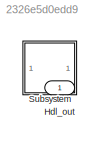
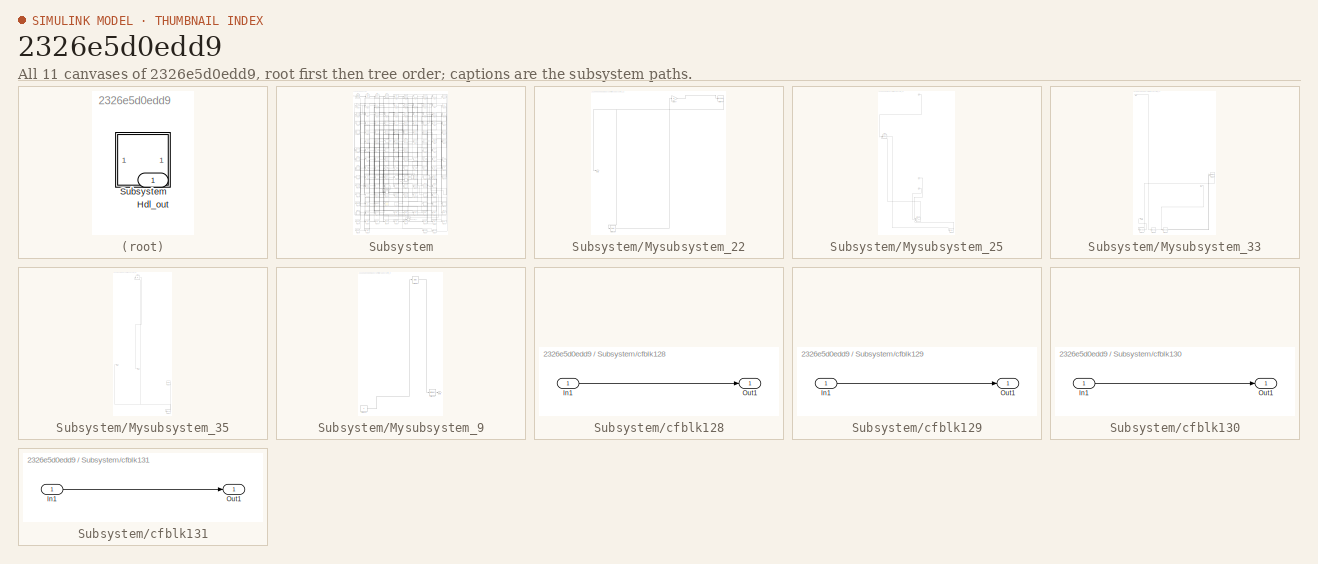
[diagram: thumbnail index - all 11 canvases of the model, root first then tree order]
MODEL slx_2326e5d0edd9
KIND model
CONFIG AbsTol = auto
CONFIG EnableMultiTasking = off
CONFIG FixedStep = auto
CONFIG MaxStep = auto
CONFIG MinStep = auto
CONFIG RelTol = 1e-3
CONFIG SampleTimeConstraint = Unconstrained
CONFIG SolverName = VariableStepAuto
CONFIG StartTime = 0.0
CONFIG StopTime = 10.0
BLOCK [Outport] Hdl_out
  OutDataTypeStr = uint8
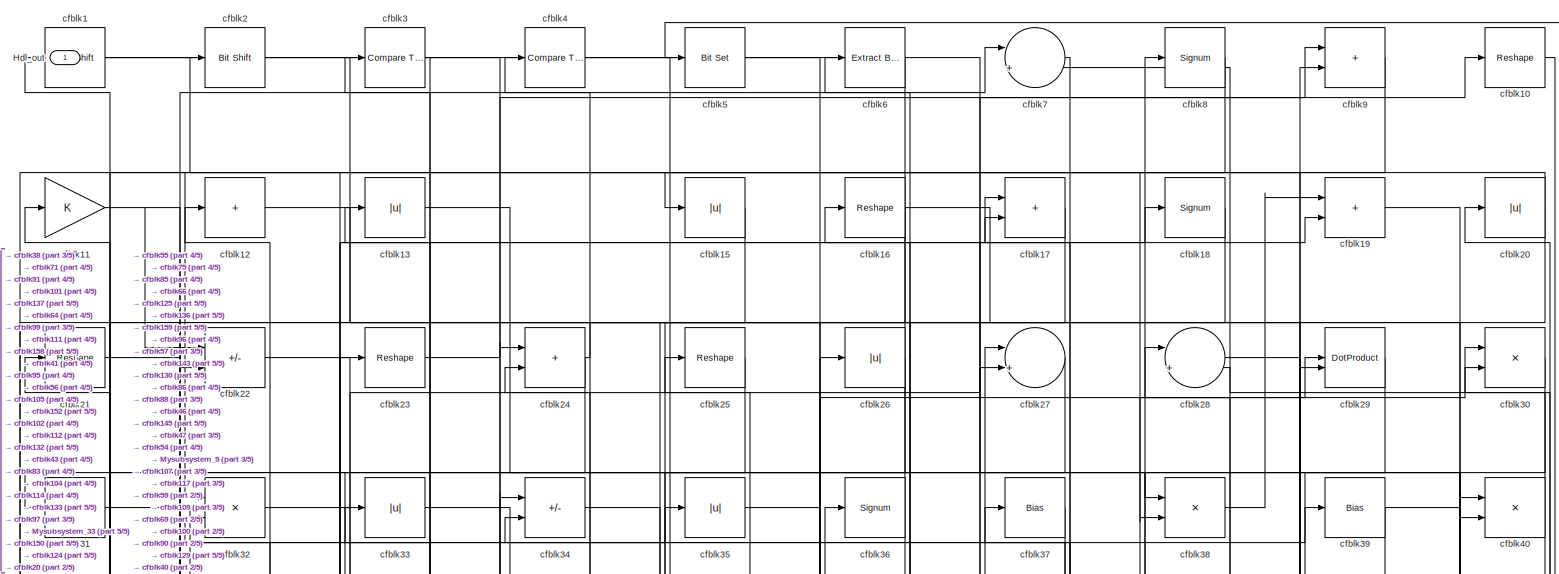
[diagram: Subsystem - part 1/5, full width, top band]
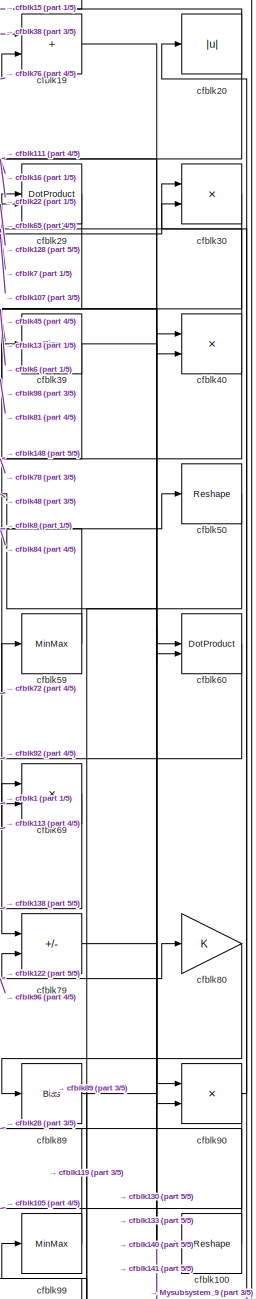
[diagram: Subsystem - part 2/5, middle right region]
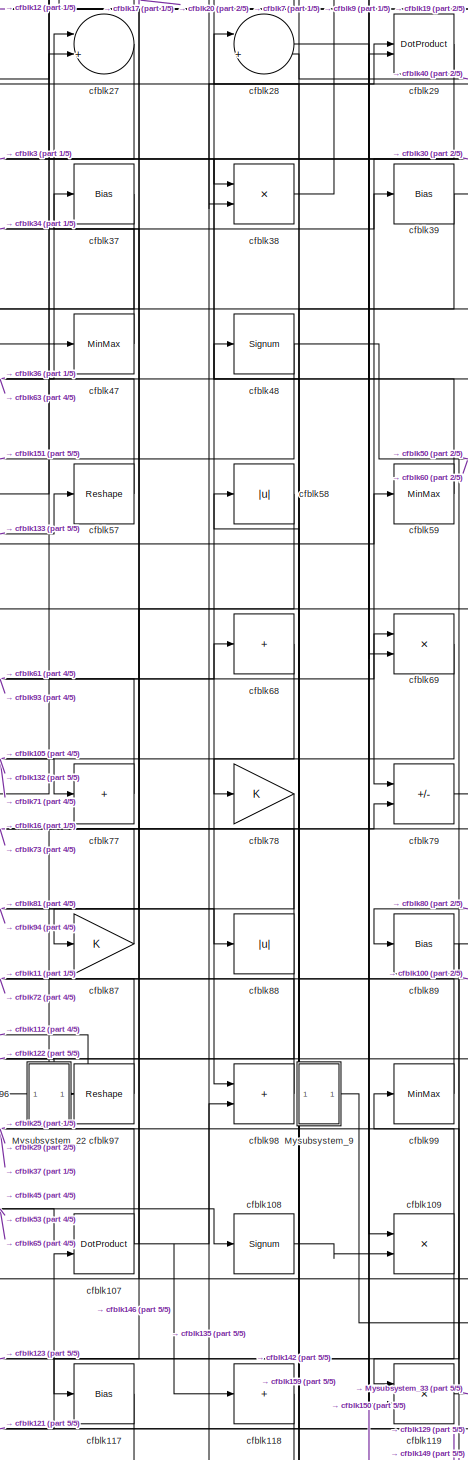
[diagram: Subsystem - part 3/5, middle right region]
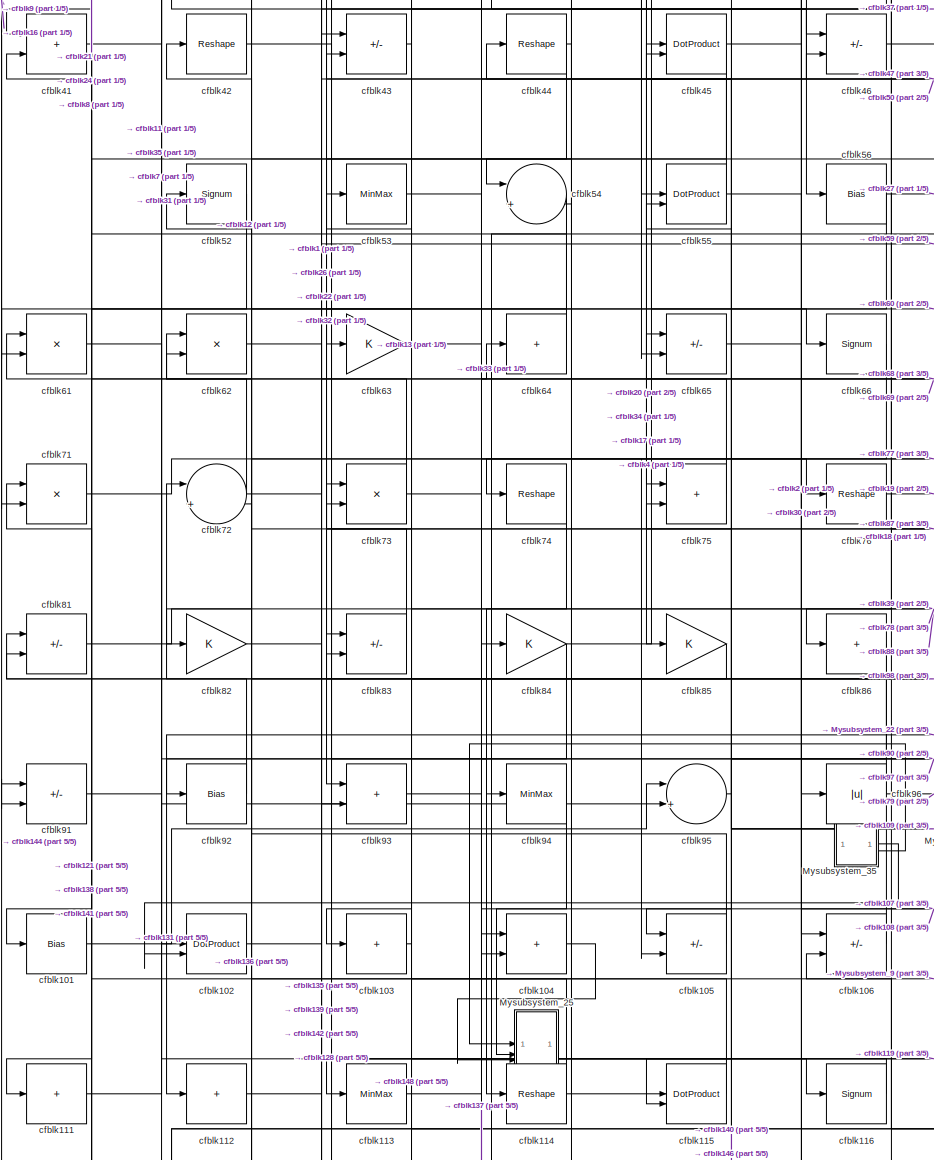
[diagram: Subsystem - part 4/5, middle left region]
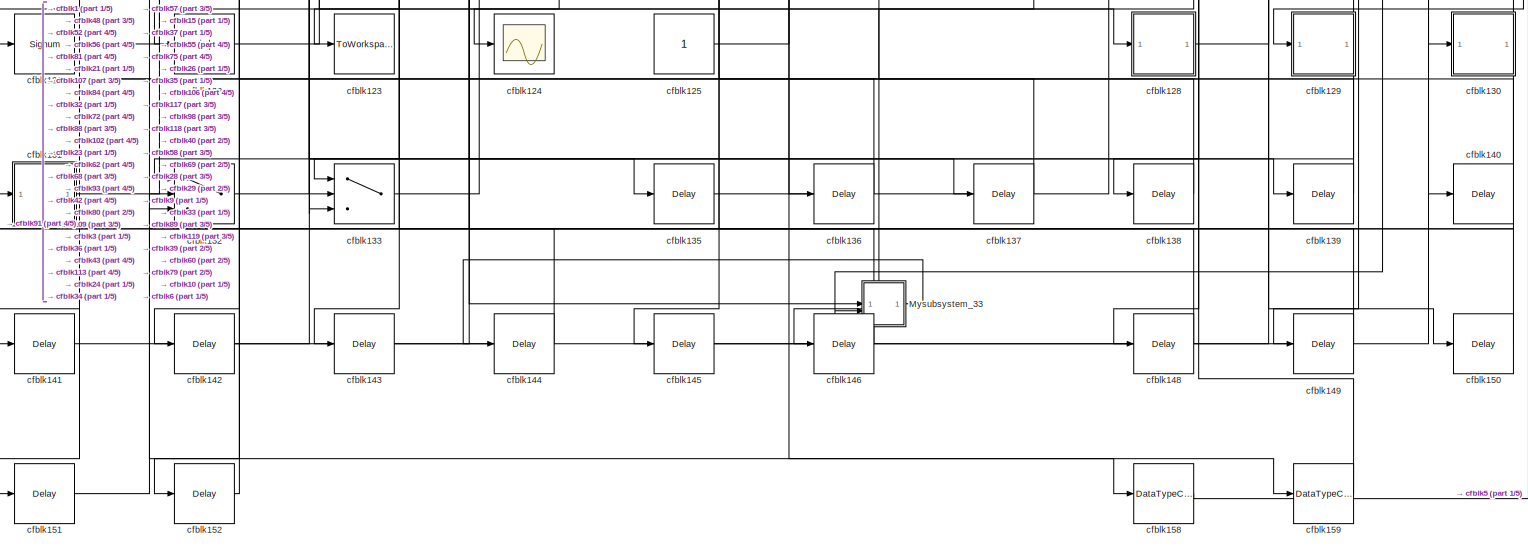
[diagram: Subsystem - part 5/5, full width, bottom band]
BLOCK [SubSystem] Subsystem
BLOCK [Outport] Subsystem/Hdl_out
  OutDataTypeStr = uint8
BLOCK [SubSystem] Subsystem/Mysubsystem_22
  RTWFcnName = Mysubsystem_22
  RTWFcnNameOpts = User specified
  RTWFileNameOpts = Use function name
  RTWSystemCode = Reusable function
  TreatAsAtomicUnit = on
BLOCK [Outport] Subsystem/Mysubsystem_22/Out1
BLOCK [Delay] Subsystem/Mysubsystem_22/cfblk153
  InputPortMap = u0
  SampleTime = 1
BLOCK [Gain] Subsystem/Mysubsystem_22/cfblk67
BLOCK [Reshape] Subsystem/Mysubsystem_22/cfblk70
BLOCK [SubSystem] Subsystem/Mysubsystem_25
  RTWFcnName = Mysubsystem_25
  RTWFcnNameOpts = User specified
  RTWFileNameOpts = Use function name
  RTWSystemCode = Reusable function
  TreatAsAtomicUnit = on
BLOCK [Inport] Subsystem/Mysubsystem_25/In1
BLOCK [Inport] Subsystem/Mysubsystem_25/In2
  Port = 2
BLOCK [Inport] Subsystem/Mysubsystem_25/In3
  Port = 3
BLOCK [Switch] Subsystem/Mysubsystem_25/cfblk134
  InputSameDT = off
  SaturateOnIntegerOverflow = off
BLOCK [Delay] Subsystem/Mysubsystem_25/cfblk147
  InputPortMap = u0
  SampleTime = 1
BLOCK [DotProduct] Subsystem/Mysubsystem_25/cfblk51
  OutDataTypeStr = Inherit: Inherit via internal rule
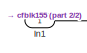
[diagram: Subsystem/Mysubsystem_33 - part 1/2, top left region]
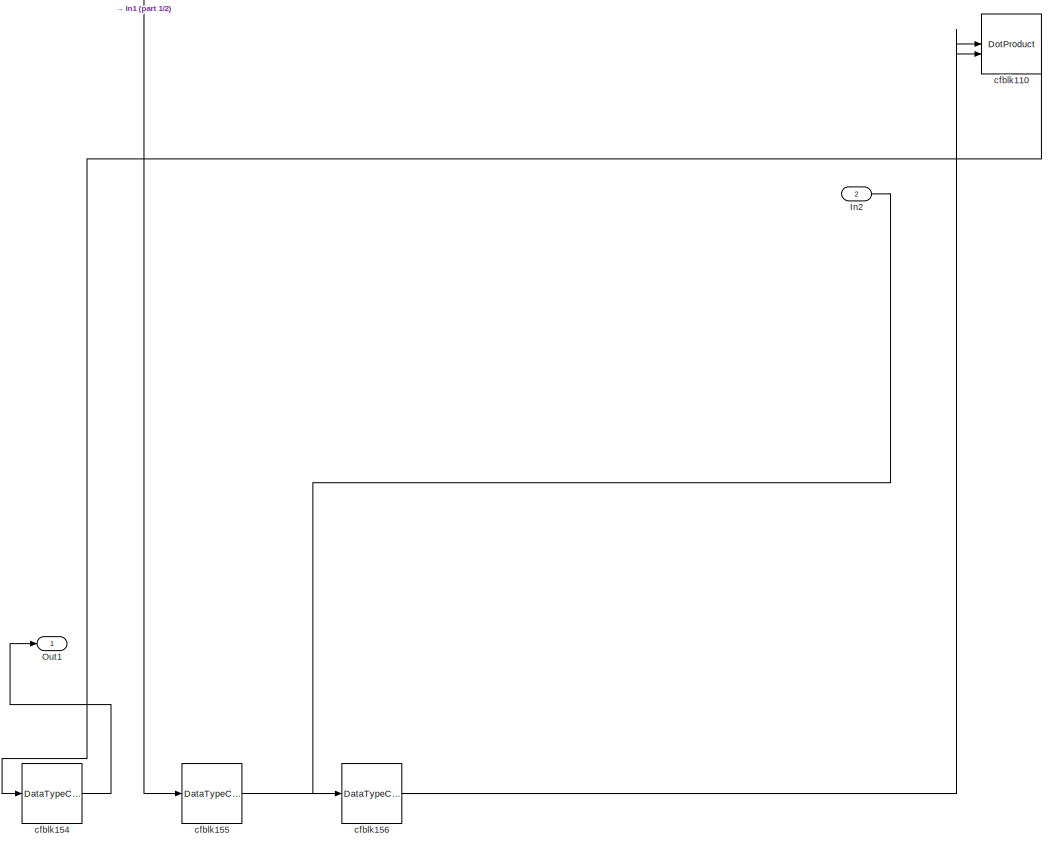
[diagram: Subsystem/Mysubsystem_33 - part 2/2, full width, bottom band]
BLOCK [SubSystem] Subsystem/Mysubsystem_33
  RTWFcnName = Mysubsystem_33
  RTWFcnNameOpts = User specified
  RTWFileNameOpts = Use function name
  RTWSystemCode = Reusable function
  TreatAsAtomicUnit = on
BLOCK [Inport] Subsystem/Mysubsystem_33/In1
BLOCK [Inport] Subsystem/Mysubsystem_33/In2
  Port = 2
BLOCK [Outport] Subsystem/Mysubsystem_33/Out1
BLOCK [DotProduct] Subsystem/Mysubsystem_33/cfblk110
  OutDataTypeStr = Inherit: Inherit via internal rule
BLOCK [DataTypeConversion] Subsystem/Mysubsystem_33/cfblk154
  OutDataTypeStr = uint8
  RndMeth = Floor
  SaturateOnIntegerOverflow = off
BLOCK [DataTypeConversion] Subsystem/Mysubsystem_33/cfblk155
  OutDataTypeStr = uint8
  RndMeth = Floor
  SaturateOnIntegerOverflow = off
BLOCK [DataTypeConversion] Subsystem/Mysubsystem_33/cfblk156
  OutDataTypeStr = uint8
  RndMeth = Floor
  SaturateOnIntegerOverflow = off
BLOCK [SubSystem] Subsystem/Mysubsystem_35
  RTWFcnName = Mysubsystem_35
  RTWFcnNameOpts = User specified
  RTWFileNameOpts = Use function name
  RTWSystemCode = Reusable function
  TreatAsAtomicUnit = on
BLOCK [Outport] Subsystem/Mysubsystem_35/Out1
BLOCK [Outport] Subsystem/Mysubsystem_35/Out2
  Port = 2
BLOCK [Reference] Subsystem/Mysubsystem_35/cfblk127  REF=hdlsllib/Sources/Counter
Limited
  SourceBlock = hdlsllib/Sources/Counter\nLimited
  SourceType = Counter Limited
BLOCK [Abs] Subsystem/Mysubsystem_35/cfblk14
  SaturateOnIntegerOverflow = off
BLOCK [DataTypeConversion] Subsystem/Mysubsystem_35/cfblk157
  RndMeth = Floor
  SaturateOnIntegerOverflow = off
BLOCK [SubSystem] Subsystem/Mysubsystem_9
  RTWFcnName = Mysubsystem_9
  RTWFcnNameOpts = User specified
  RTWFileNameOpts = Use function name
  RTWSystemCode = Reusable function
  TreatAsAtomicUnit = on
BLOCK [Outport] Subsystem/Mysubsystem_9/Out1
BLOCK [MinMax] Subsystem/Mysubsystem_9/cfblk120
BLOCK [Constant] Subsystem/Mysubsystem_9/cfblk126
  SampleTime = -1
BLOCK [Bias] Subsystem/Mysubsystem_9/cfblk49
  Bias = 0.0
  SaturateOnIntegerOverflow = off
BLOCK [ArithShift] Subsystem/cfblk1
  BitShiftNumber = 8
  InputPortMap = u0
BLOCK [Reshape] Subsystem/cfblk10
BLOCK [Reshape] Subsystem/cfblk100
BLOCK [Bias] Subsystem/cfblk101
  Bias = 0.0
  SaturateOnIntegerOverflow = off
BLOCK [DotProduct] Subsystem/cfblk102
  OutDataTypeStr = uint8
BLOCK [Sum] Subsystem/cfblk103
  IconShape = rectangular
  Inputs = +
  OutDataTypeStr = uint8
BLOCK [Sum] Subsystem/cfblk104
  IconShape = rectangular
  OutDataTypeStr = uint8
BLOCK [Sum] Subsystem/cfblk105
  IconShape = rectangular
  Inputs = +-
  OutDataTypeStr = uint8
BLOCK [Sum] Subsystem/cfblk106
  IconShape = rectangular
  Inputs = +-
  OutDataTypeStr = uint8
BLOCK [DotProduct] Subsystem/cfblk107
  OutDataTypeStr = uint8
BLOCK [Signum] Subsystem/cfblk108
BLOCK [Product] Subsystem/cfblk109
  Inputs = */
  OutDataTypeStr = uint8
  RndMeth = Zero
  SaturateOnIntegerOverflow = on
BLOCK [Gain] Subsystem/cfblk11
  OutDataTypeStr = uint8
BLOCK [Sum] Subsystem/cfblk111
  IconShape = rectangular
  Inputs = +
  OutDataTypeStr = uint8
BLOCK [Sum] Subsystem/cfblk112
  IconShape = rectangular
  Inputs = +
  OutDataTypeStr = uint8
BLOCK [MinMax] Subsystem/cfblk113
  OutDataTypeStr = uint8
BLOCK [Reshape] Subsystem/cfblk114
BLOCK [DotProduct] Subsystem/cfblk115
  OutDataTypeStr = uint8
BLOCK [Signum] Subsystem/cfblk116
BLOCK [Bias] Subsystem/cfblk117
  Bias = 0.0
  SaturateOnIntegerOverflow = off
BLOCK [Sum] Subsystem/cfblk118
  IconShape = rectangular
  Inputs = +
  OutDataTypeStr = uint8
BLOCK [Product] Subsystem/cfblk119
  Inputs = */
  OutDataTypeStr = uint8
  RndMeth = Zero
  SaturateOnIntegerOverflow = on
BLOCK [Sum] Subsystem/cfblk12
  IconShape = rectangular
  Inputs = +
  OutDataTypeStr = uint8
BLOCK [Signum] Subsystem/cfblk121
BLOCK [Abs] Subsystem/cfblk122
  OutDataTypeStr = uint8
  SaturateOnIntegerOverflow = off
BLOCK [ToWorkspace] Subsystem/cfblk123
  MaxDataPoints = inf
  SampleTime = -1
  SaveFormat = Timeseries
  VariableName = simout
BLOCK [Scope] Subsystem/cfblk124
  Floating = off
  NumInputPorts = 1
  ScopeSpecificationString = Simulink.scopes.TimeScopeBlockCfg('CurrentConfiguration', extmgr.ConfigurationSet(extmgr.Configuration('Core','General UI',true),extmgr.Configuration('Core','Source UI',true),extmgr.Configuration('Sources','WiredSimulink',true,'DataLoggingSaveFormat','Array','DataLoggingLimitDataPoints',true,'DataLoggingDecimation','1'),extmgr.Configuration('Visuals','Time Domain',true,'DisplayPropertyDefaults',st...<+829ch>
BLOCK [Constant] Subsystem/cfblk125
  OutDataTypeStr = uint8
  SampleTime = -1
BLOCK [SubSystem] Subsystem/cfblk128
  LibrarySourceBlock = hdlsllib/Ports &\nSubsystems/Subsystem
BLOCK [Inport] Subsystem/cfblk128/In1
BLOCK [Outport] Subsystem/cfblk128/Out1
BLOCK [SubSystem] Subsystem/cfblk129
  LibrarySourceBlock = hdlsllib/Ports &\nSubsystems/Subsystem
BLOCK [Inport] Subsystem/cfblk129/In1
BLOCK [Outport] Subsystem/cfblk129/Out1
BLOCK [Abs] Subsystem/cfblk13
  OutDataTypeStr = uint8
  SaturateOnIntegerOverflow = off
BLOCK [SubSystem] Subsystem/cfblk130
  LibrarySourceBlock = hdlsllib/Ports &\nSubsystems/Subsystem
BLOCK [Inport] Subsystem/cfblk130/In1
BLOCK [Outport] Subsystem/cfblk130/Out1
BLOCK [SubSystem] Subsystem/cfblk131
  LibrarySourceBlock = hdlsllib/Ports &\nSubsystems/Subsystem
BLOCK [Inport] Subsystem/cfblk131/In1
BLOCK [Outport] Subsystem/cfblk131/Out1
BLOCK [Switch] Subsystem/cfblk132
  InputSameDT = off
  OutDataTypeStr = uint8
  SaturateOnIntegerOverflow = off
BLOCK [Switch] Subsystem/cfblk133
  InputSameDT = off
  OutDataTypeStr = uint8
  SaturateOnIntegerOverflow = off
BLOCK [Delay] Subsystem/cfblk135
  InputPortMap = u0
  SampleTime = 1
BLOCK [Delay] Subsystem/cfblk136
  InputPortMap = u0
  SampleTime = 1
BLOCK [Delay] Subsystem/cfblk137
  InputPortMap = u0
  SampleTime = 1
BLOCK [Delay] Subsystem/cfblk138
  InputPortMap = u0
  SampleTime = 1
BLOCK [Delay] Subsystem/cfblk139
  InputPortMap = u0
  SampleTime = 1
BLOCK [Delay] Subsystem/cfblk140
  InputPortMap = u0
  SampleTime = 1
BLOCK [Delay] Subsystem/cfblk141
  InputPortMap = u0
  SampleTime = 1
BLOCK [Delay] Subsystem/cfblk142
  InputPortMap = u0
  SampleTime = 1
BLOCK [Delay] Subsystem/cfblk143
  InputPortMap = u0
  SampleTime = 1
BLOCK [Delay] Subsystem/cfblk144
  InputPortMap = u0
  SampleTime = 1
BLOCK [Delay] Subsystem/cfblk145
  InputPortMap = u0
  SampleTime = 1
BLOCK [Delay] Subsystem/cfblk146
  InputPortMap = u0
  SampleTime = 1
BLOCK [Delay] Subsystem/cfblk148
  InputPortMap = u0
  SampleTime = 1
BLOCK [Delay] Subsystem/cfblk149
  InputPortMap = u0
  SampleTime = 1
BLOCK [Abs] Subsystem/cfblk15
  OutDataTypeStr = uint8
  SaturateOnIntegerOverflow = off
BLOCK [Delay] Subsystem/cfblk150
  InputPortMap = u0
  SampleTime = 1
BLOCK [Delay] Subsystem/cfblk151
  InputPortMap = u0
  SampleTime = 1
BLOCK [Delay] Subsystem/cfblk152
  InputPortMap = u0
  SampleTime = 1
BLOCK [DataTypeConversion] Subsystem/cfblk158
  OutDataTypeStr = uint8
  RndMeth = Floor
  SaturateOnIntegerOverflow = off
BLOCK [DataTypeConversion] Subsystem/cfblk159
  OutDataTypeStr = uint8
  RndMeth = Floor
  SaturateOnIntegerOverflow = off
BLOCK [Reshape] Subsystem/cfblk16
BLOCK [Sum] Subsystem/cfblk17
  IconShape = rectangular
  OutDataTypeStr = uint8
BLOCK [Signum] Subsystem/cfblk18
BLOCK [Sum] Subsystem/cfblk19
  IconShape = rectangular
  OutDataTypeStr = uint8
BLOCK [Reference] Subsystem/cfblk2  REF=hdlsllib/Logic and Bit
Operations/Bit Shift
  SourceBlock = hdlsllib/Logic and Bit\nOperations/Bit Shift
  SourceType = Bit Shift
BLOCK [Abs] Subsystem/cfblk20
  OutDataTypeStr = uint8
  SaturateOnIntegerOverflow = off
BLOCK [Reshape] Subsystem/cfblk21
BLOCK [Sum] Subsystem/cfblk22
  IconShape = rectangular
  Inputs = +-
  OutDataTypeStr = uint8
BLOCK [Reshape] Subsystem/cfblk23
BLOCK [Sum] Subsystem/cfblk24
  IconShape = rectangular
  OutDataTypeStr = uint8
BLOCK [Reshape] Subsystem/cfblk25
BLOCK [Abs] Subsystem/cfblk26
  OutDataTypeStr = uint8
  SaturateOnIntegerOverflow = off
BLOCK [Sum] Subsystem/cfblk27
  Inputs = |++
  OutDataTypeStr = uint8
BLOCK [Sum] Subsystem/cfblk28
  Inputs = |++
  OutDataTypeStr = uint8
BLOCK [DotProduct] Subsystem/cfblk29
  OutDataTypeStr = uint8
BLOCK [Reference] Subsystem/cfblk3  REF=hdlsllib/Logic and Bit
Operations/Compare
To Constant
  SourceBlock = hdlsllib/Logic and Bit\nOperations/Compare\nTo Constant
  SourceType = Compare To Constant
BLOCK [Product] Subsystem/cfblk30
  Inputs = */
  OutDataTypeStr = uint8
  RndMeth = Zero
  SaturateOnIntegerOverflow = on
BLOCK [Sum] Subsystem/cfblk31
  IconShape = rectangular
  Inputs = +
  OutDataTypeStr = uint8
BLOCK [Product] Subsystem/cfblk32
  Inputs = */
  OutDataTypeStr = uint8
  RndMeth = Zero
  SaturateOnIntegerOverflow = on
BLOCK [Abs] Subsystem/cfblk33
  OutDataTypeStr = uint8
  SaturateOnIntegerOverflow = off
BLOCK [Sum] Subsystem/cfblk34
  IconShape = rectangular
  Inputs = +-
  OutDataTypeStr = uint8
BLOCK [Abs] Subsystem/cfblk35
  OutDataTypeStr = uint8
  SaturateOnIntegerOverflow = off
BLOCK [Signum] Subsystem/cfblk36
BLOCK [Bias] Subsystem/cfblk37
  Bias = 0.0
  SaturateOnIntegerOverflow = off
BLOCK [Product] Subsystem/cfblk38
  Inputs = */
  OutDataTypeStr = uint8
  RndMeth = Zero
  SaturateOnIntegerOverflow = on
BLOCK [Bias] Subsystem/cfblk39
  Bias = 0.0
  SaturateOnIntegerOverflow = off
BLOCK [Reference] Subsystem/cfblk4  REF=hdlsllib/Logic and Bit
Operations/Compare
To Constant
  SourceBlock = hdlsllib/Logic and Bit\nOperations/Compare\nTo Constant
  SourceType = Compare To Constant
BLOCK [Product] Subsystem/cfblk40
  Inputs = */
  OutDataTypeStr = uint8
  RndMeth = Zero
  SaturateOnIntegerOverflow = on
BLOCK [Sum] Subsystem/cfblk41
  IconShape = rectangular
  OutDataTypeStr = uint8
BLOCK [Reshape] Subsystem/cfblk42
BLOCK [Sum] Subsystem/cfblk43
  IconShape = rectangular
  Inputs = +-
  OutDataTypeStr = uint8
BLOCK [Reshape] Subsystem/cfblk44
BLOCK [DotProduct] Subsystem/cfblk45
  OutDataTypeStr = uint8
BLOCK [Sum] Subsystem/cfblk46
  IconShape = rectangular
  Inputs = +-
  OutDataTypeStr = uint8
BLOCK [MinMax] Subsystem/cfblk47
  OutDataTypeStr = uint8
BLOCK [Signum] Subsystem/cfblk48
BLOCK [Reference] Subsystem/cfblk5  REF=simulink/Logic and Bit
Operations/Bit Set
  LibrarySourceBlock = hdlsllib/Logic and Bit\nOperations/Bit Set
  SourceBlock = simulink/Logic and Bit\nOperations/Bit Set
  SourceType = Bit Set
BLOCK [Reshape] Subsystem/cfblk50
BLOCK [Signum] Subsystem/cfblk52
BLOCK [MinMax] Subsystem/cfblk53
  OutDataTypeStr = uint8
BLOCK [Sum] Subsystem/cfblk54
  Inputs = |++
  OutDataTypeStr = uint8
BLOCK [DotProduct] Subsystem/cfblk55
  OutDataTypeStr = uint8
BLOCK [Bias] Subsystem/cfblk56
  Bias = 0.0
  SaturateOnIntegerOverflow = off
BLOCK [Reshape] Subsystem/cfblk57
BLOCK [Abs] Subsystem/cfblk58
  OutDataTypeStr = uint8
  SaturateOnIntegerOverflow = off
BLOCK [MinMax] Subsystem/cfblk59
  OutDataTypeStr = uint8
BLOCK [Reference] Subsystem/cfblk6  REF=simulink/Logic and Bit
Operations/Extract Bits
  LibrarySourceBlock = hdlsllib/Logic and Bit\nOperations/Extract Bits
  SourceBlock = simulink/Logic and Bit\nOperations/Extract Bits
  SourceType = Extract Bits
BLOCK [DotProduct] Subsystem/cfblk60
  OutDataTypeStr = uint8
BLOCK [Product] Subsystem/cfblk61
  Inputs = */
  OutDataTypeStr = uint8
  RndMeth = Zero
  SaturateOnIntegerOverflow = on
BLOCK [Product] Subsystem/cfblk62
  Inputs = */
  OutDataTypeStr = uint8
  RndMeth = Zero
  SaturateOnIntegerOverflow = on
BLOCK [Gain] Subsystem/cfblk63
  OutDataTypeStr = uint8
BLOCK [Sum] Subsystem/cfblk64
  IconShape = rectangular
  Inputs = +
  OutDataTypeStr = uint8
BLOCK [Sum] Subsystem/cfblk65
  IconShape = rectangular
  Inputs = +-
  OutDataTypeStr = uint8
BLOCK [Signum] Subsystem/cfblk66
BLOCK [Sum] Subsystem/cfblk68
  IconShape = rectangular
  Inputs = +
  OutDataTypeStr = uint8
BLOCK [Product] Subsystem/cfblk69
  Inputs = */
  OutDataTypeStr = uint8
  RndMeth = Zero
  SaturateOnIntegerOverflow = on
BLOCK [Sum] Subsystem/cfblk7
  Inputs = |++
  OutDataTypeStr = uint8
BLOCK [Product] Subsystem/cfblk71
  Inputs = */
  OutDataTypeStr = uint8
  RndMeth = Zero
  SaturateOnIntegerOverflow = on
BLOCK [Sum] Subsystem/cfblk72
  Inputs = |++
  OutDataTypeStr = uint8
BLOCK [Product] Subsystem/cfblk73
  Inputs = */
  OutDataTypeStr = uint8
  RndMeth = Zero
  SaturateOnIntegerOverflow = on
BLOCK [Reshape] Subsystem/cfblk74
BLOCK [Sum] Subsystem/cfblk75
  IconShape = rectangular
  OutDataTypeStr = uint8
BLOCK [Reshape] Subsystem/cfblk76
BLOCK [Sum] Subsystem/cfblk77
  IconShape = rectangular
  Inputs = +
  OutDataTypeStr = uint8
BLOCK [Gain] Subsystem/cfblk78
  OutDataTypeStr = uint8
BLOCK [Sum] Subsystem/cfblk79
  IconShape = rectangular
  Inputs = +-
  OutDataTypeStr = uint8
BLOCK [Signum] Subsystem/cfblk8
BLOCK [Gain] Subsystem/cfblk80
  OutDataTypeStr = uint8
BLOCK [Sum] Subsystem/cfblk81
  IconShape = rectangular
  Inputs = +-
  OutDataTypeStr = uint8
BLOCK [Gain] Subsystem/cfblk82
  OutDataTypeStr = uint8
BLOCK [Sum] Subsystem/cfblk83
  IconShape = rectangular
  Inputs = +-
  OutDataTypeStr = uint8
BLOCK [Gain] Subsystem/cfblk84
  OutDataTypeStr = uint8
BLOCK [Gain] Subsystem/cfblk85
  OutDataTypeStr = uint8
BLOCK [Sum] Subsystem/cfblk86
  IconShape = rectangular
  Inputs = +
  OutDataTypeStr = uint8
BLOCK [Gain] Subsystem/cfblk87
  OutDataTypeStr = uint8
BLOCK [Abs] Subsystem/cfblk88
  OutDataTypeStr = uint8
  SaturateOnIntegerOverflow = off
BLOCK [Bias] Subsystem/cfblk89
  Bias = 0.0
  SaturateOnIntegerOverflow = off
BLOCK [Sum] Subsystem/cfblk9
  IconShape = rectangular
  OutDataTypeStr = uint8
BLOCK [Product] Subsystem/cfblk90
  Inputs = */
  OutDataTypeStr = uint8
  RndMeth = Zero
  SaturateOnIntegerOverflow = on
BLOCK [Sum] Subsystem/cfblk91
  IconShape = rectangular
  Inputs = +-
  OutDataTypeStr = uint8
BLOCK [Bias] Subsystem/cfblk92
  Bias = 0.0
  SaturateOnIntegerOverflow = off
BLOCK [Sum] Subsystem/cfblk93
  IconShape = rectangular
  OutDataTypeStr = uint8
BLOCK [MinMax] Subsystem/cfblk94
  OutDataTypeStr = uint8
BLOCK [Sum] Subsystem/cfblk95
  Inputs = |++
  OutDataTypeStr = uint8
BLOCK [Abs] Subsystem/cfblk96
  OutDataTypeStr = uint8
  SaturateOnIntegerOverflow = off
BLOCK [Reshape] Subsystem/cfblk97
BLOCK [Sum] Subsystem/cfblk98
  IconShape = rectangular
  OutDataTypeStr = uint8
BLOCK [MinMax] Subsystem/cfblk99
  OutDataTypeStr = uint8
LINE Subsystem/Mysubsystem_22/cfblk153:1 -> Subsystem/Mysubsystem_22/cfblk67:1
LINE Subsystem/Mysubsystem_22/cfblk67:1 -> Subsystem/Mysubsystem_22/cfblk70:1
NET Subsystem/Mysubsystem_22/cfblk70:1 -> Subsystem/Mysubsystem_22/Out1:1, Subsystem/Mysubsystem_22/cfblk153:1
LINE Subsystem/Mysubsystem_22:1 -> Subsystem/cfblk112:1
LINE Subsystem/Mysubsystem_25/In1:1 -> Subsystem/Mysubsystem_25/cfblk51:2
LINE Subsystem/Mysubsystem_25/In2:1 -> Subsystem/Mysubsystem_25/cfblk134:1
LINE Subsystem/Mysubsystem_25/In3:1 -> Subsystem/Mysubsystem_25/cfblk134:2
LINE Subsystem/Mysubsystem_25/cfblk134:1 -> Subsystem/Mysubsystem_25/cfblk51:1
LINE Subsystem/Mysubsystem_25/cfblk147:1 -> Subsystem/Mysubsystem_25/cfblk134:3
LINE Subsystem/Mysubsystem_25/cfblk51:1 -> Subsystem/Mysubsystem_25/cfblk147:1
LINE Subsystem/Mysubsystem_33/In1:1 -> Subsystem/Mysubsystem_33/cfblk155:1
LINE Subsystem/Mysubsystem_33/In2:1 -> Subsystem/Mysubsystem_33/cfblk156:1
LINE Subsystem/Mysubsystem_33/cfblk110:1 -> Subsystem/Mysubsystem_33/cfblk154:1
LINE Subsystem/Mysubsystem_33/cfblk154:1 -> Subsystem/Mysubsystem_33/Out1:1
LINE Subsystem/Mysubsystem_33/cfblk155:1 -> Subsystem/Mysubsystem_33/cfblk110:1
LINE Subsystem/Mysubsystem_33/cfblk156:1 -> Subsystem/Mysubsystem_33/cfblk110:2
LINE Subsystem/Mysubsystem_33:1 -> Subsystem/cfblk144:1
LINE Subsystem/Mysubsystem_35/cfblk127:1 -> Subsystem/Mysubsystem_35/cfblk157:1
LINE Subsystem/Mysubsystem_35/cfblk14:1 -> Subsystem/Mysubsystem_35/Out2:1
NET Subsystem/Mysubsystem_35/cfblk157:1 -> Subsystem/Mysubsystem_35/Out1:1, Subsystem/Mysubsystem_35/cfblk14:1
LINE Subsystem/Mysubsystem_35:1 -> Subsystem/cfblk102:2
LINE Subsystem/Mysubsystem_35:2 -> Subsystem/Mysubsystem_25:1
LINE Subsystem/Mysubsystem_9/cfblk120:1 -> Subsystem/Mysubsystem_9/Out1:1
LINE Subsystem/Mysubsystem_9/cfblk126:1 -> Subsystem/Mysubsystem_9/cfblk49:1
LINE Subsystem/Mysubsystem_9/cfblk49:1 -> Subsystem/Mysubsystem_9/cfblk120:1
NET Subsystem/Mysubsystem_9:1 -> Subsystem/cfblk17:1, Subsystem/cfblk20:1, Subsystem/cfblk71:1
LINE Subsystem/cfblk100:1 -> Subsystem/cfblk28:1
LINE Subsystem/cfblk101:1 -> Subsystem/cfblk95:1
NET Subsystem/cfblk102:1 -> Subsystem/cfblk139:1, Subsystem/cfblk17:2, Subsystem/cfblk64:1
LINE Subsystem/cfblk103:1 -> Subsystem/cfblk53:1
LINE Subsystem/cfblk104:1 -> Subsystem/Mysubsystem_25:3
LINE Subsystem/cfblk105:1 -> Subsystem/cfblk12:1
LINE Subsystem/cfblk106:1 -> Subsystem/cfblk44:1
NET Subsystem/cfblk107:1 -> Subsystem/cfblk118:1, Subsystem/cfblk25:1, Subsystem/cfblk29:1, Subsystem/cfblk37:1
NET Subsystem/cfblk108:1 -> Subsystem/cfblk109:2, Subsystem/cfblk28:2
NET Subsystem/cfblk109:1 -> Subsystem/cfblk123:1, Subsystem/cfblk45:2
LINE Subsystem/cfblk10:1 -> Subsystem/cfblk129:1
LINE Subsystem/cfblk111:1 -> Subsystem/cfblk7:1
NET Subsystem/cfblk112:1 -> Subsystem/cfblk18:1, Subsystem/cfblk46:2
NET Subsystem/cfblk113:1 -> Subsystem/cfblk137:1, Subsystem/cfblk69:1
NET Subsystem/cfblk114:1 -> Subsystem/cfblk115:2, Subsystem/cfblk24:2, Subsystem/cfblk52:1
LINE Subsystem/cfblk115:1 -> Subsystem/cfblk73:1
LINE Subsystem/cfblk116:1 -> Subsystem/cfblk113:1
LINE Subsystem/cfblk117:1 -> Subsystem/cfblk146:1
LINE Subsystem/cfblk118:1 -> Subsystem/cfblk142:1
NET Subsystem/cfblk119:1 -> Subsystem/Mysubsystem_33:2, Subsystem/cfblk99:1
NET Subsystem/cfblk11:1 -> Subsystem/cfblk22:1, Subsystem/cfblk95:2
LINE Subsystem/cfblk121:1 -> Subsystem/cfblk107:2
LINE Subsystem/cfblk122:1 -> Subsystem/cfblk80:1
LINE Subsystem/cfblk125:1 -> Subsystem/cfblk26:1
LINE Subsystem/cfblk128/In1:1 -> Subsystem/cfblk128/Out1:1
LINE Subsystem/cfblk128:1 -> Subsystem/cfblk29:2
LINE Subsystem/cfblk129/In1:1 -> Subsystem/cfblk129/Out1:1
NET Subsystem/cfblk129:1 -> Subsystem/cfblk152:1, Subsystem/cfblk33:1, Subsystem/cfblk48:1
LINE Subsystem/cfblk12:1 -> Subsystem/cfblk109:1
LINE Subsystem/cfblk130/In1:1 -> Subsystem/cfblk130/Out1:1
NET Subsystem/cfblk130:1 -> Subsystem/cfblk131:1, Subsystem/cfblk6:1
LINE Subsystem/cfblk131/In1:1 -> Subsystem/cfblk131/Out1:1
LINE Subsystem/cfblk131:1 -> Subsystem/cfblk84:1
LINE Subsystem/cfblk132:1 -> Subsystem/cfblk23:1
LINE Subsystem/cfblk133:1 -> Subsystem/cfblk57:1
LINE Subsystem/cfblk135:1 -> Subsystem/cfblk98:2
LINE Subsystem/cfblk136:1 -> Subsystem/cfblk72:2
LINE Subsystem/cfblk137:1 -> Subsystem/cfblk1:1
LINE Subsystem/cfblk138:1 -> Subsystem/cfblk81:2
LINE Subsystem/cfblk139:1 -> Subsystem/cfblk106:2
LINE Subsystem/cfblk13:1 -> Subsystem/cfblk100:1
LINE Subsystem/cfblk140:1 -> Subsystem/cfblk75:2
LINE Subsystem/cfblk141:1 -> Subsystem/cfblk60:1
LINE Subsystem/cfblk142:1 -> Subsystem/cfblk93:2
LINE Subsystem/cfblk143:1 -> Subsystem/cfblk34:1
LINE Subsystem/cfblk144:1 -> Subsystem/cfblk91:1
LINE Subsystem/cfblk145:1 -> Subsystem/cfblk9:2
LINE Subsystem/cfblk146:1 -> Subsystem/cfblk55:2
LINE Subsystem/cfblk148:1 -> Subsystem/cfblk43:2
LINE Subsystem/cfblk149:1 -> Subsystem/cfblk132:2
LINE Subsystem/cfblk150:1 -> Subsystem/cfblk24:1
LINE Subsystem/cfblk151:1 -> Subsystem/cfblk132:3
LINE Subsystem/cfblk152:1 -> Subsystem/cfblk32:2
LINE Subsystem/cfblk158:1 -> Subsystem/cfblk5:1
LINE Subsystem/cfblk159:1 -> Subsystem/cfblk58:1
LINE Subsystem/cfblk15:1 -> Subsystem/cfblk124:1
NET Subsystem/cfblk16:1 -> Subsystem/cfblk90:1, Subsystem/cfblk91:2
LINE Subsystem/cfblk17:1 -> Subsystem/cfblk75:1
LINE Subsystem/cfblk18:1 -> Subsystem/cfblk86:1
LINE Subsystem/cfblk19:1 -> Subsystem/cfblk90:2
NET Subsystem/cfblk1:1 -> Subsystem/cfblk2:1, Subsystem/cfblk43:1, Subsystem/cfblk69:2
NET Subsystem/cfblk20:1 -> Subsystem/cfblk111:1, Subsystem/cfblk15:1, Subsystem/cfblk22:2, Subsystem/cfblk65:2
LINE Subsystem/cfblk21:1 -> Subsystem/cfblk158:1
LINE Subsystem/cfblk22:1 -> Subsystem/cfblk114:1
LINE Subsystem/cfblk23:1 -> Subsystem/cfblk9:1
NET Subsystem/cfblk24:1 -> Subsystem/cfblk101:1, Subsystem/cfblk4:1
LINE Subsystem/cfblk25:1 -> Subsystem/cfblk31:1
LINE Subsystem/cfblk26:1 -> Subsystem/cfblk83:1
LINE Subsystem/cfblk27:1 -> Subsystem/cfblk85:1
LINE Subsystem/cfblk28:1 -> Subsystem/cfblk150:1
LINE Subsystem/cfblk29:1 -> Subsystem/cfblk79:1
LINE Subsystem/cfblk2:1 -> Subsystem/cfblk96:1
LINE Subsystem/cfblk30:1 -> Subsystem/cfblk98:1
LINE Subsystem/cfblk31:1 -> Subsystem/cfblk56:1
NET Subsystem/cfblk32:1 -> Subsystem/cfblk104:1, Subsystem/cfblk10:1
LINE Subsystem/cfblk33:1 -> Subsystem/cfblk46:1
LINE Subsystem/cfblk34:1 -> Subsystem/cfblk55:1
LINE Subsystem/cfblk35:1 -> Subsystem/cfblk136:1
NET Subsystem/cfblk36:1 -> Subsystem/Hdl_out:1, Subsystem/cfblk143:1
NET Subsystem/cfblk37:1 -> Subsystem/cfblk145:1, Subsystem/cfblk54:1
LINE Subsystem/cfblk38:1 -> Subsystem/cfblk19:1
NET Subsystem/cfblk39:1 -> Subsystem/cfblk130:1, Subsystem/cfblk133:3
NET Subsystem/cfblk3:1 -> Subsystem/Mysubsystem_33:1, Subsystem/cfblk133:1, Subsystem/cfblk38:1
NET Subsystem/cfblk40:1 -> Subsystem/cfblk148:1, Subsystem/cfblk78:1, Subsystem/cfblk7:2
LINE Subsystem/cfblk41:1 -> Subsystem/cfblk35:1
LINE Subsystem/cfblk42:1 -> Subsystem/cfblk128:1
LINE Subsystem/cfblk43:1 -> Subsystem/cfblk63:1
NET Subsystem/cfblk44:1 -> Subsystem/cfblk54:2, Subsystem/cfblk93:1
NET Subsystem/cfblk45:1 -> Subsystem/cfblk30:2, Subsystem/cfblk82:1
LINE Subsystem/cfblk46:1 -> Subsystem/cfblk27:1
LINE Subsystem/cfblk47:1 -> Subsystem/cfblk34:2
NET Subsystem/cfblk48:1 -> Subsystem/cfblk151:1, Subsystem/cfblk60:2
LINE Subsystem/cfblk4:1 -> Subsystem/cfblk66:1
LINE Subsystem/cfblk50:1 -> Subsystem/cfblk119:1
LINE Subsystem/cfblk52:1 -> Subsystem/cfblk121:1
LINE Subsystem/cfblk53:1 -> Subsystem/cfblk108:1
LINE Subsystem/cfblk54:1 -> Subsystem/cfblk61:2
NET Subsystem/cfblk55:1 -> Subsystem/cfblk106:1, Subsystem/cfblk13:1
NET Subsystem/cfblk56:1 -> Subsystem/cfblk141:1, Subsystem/cfblk27:2
LINE Subsystem/cfblk57:1 -> Subsystem/cfblk36:1
LINE Subsystem/cfblk58:1 -> Subsystem/cfblk87:1
LINE Subsystem/cfblk59:1 -> Subsystem/cfblk8:1
LINE Subsystem/cfblk5:1 -> Subsystem/cfblk159:1
LINE Subsystem/cfblk60:1 -> Subsystem/cfblk92:1
LINE Subsystem/cfblk61:1 -> Subsystem/cfblk97:1
LINE Subsystem/cfblk62:1 -> Subsystem/cfblk135:1
LINE Subsystem/cfblk63:1 -> Subsystem/cfblk47:1
LINE Subsystem/cfblk64:1 -> Subsystem/cfblk21:1
LINE Subsystem/cfblk65:1 -> Subsystem/cfblk107:1
LINE Subsystem/cfblk66:1 -> Subsystem/cfblk74:1
NET Subsystem/cfblk68:1 -> Subsystem/cfblk105:2, Subsystem/cfblk132:1, Subsystem/cfblk133:2
LINE Subsystem/cfblk69:1 -> Subsystem/cfblk138:1
LINE Subsystem/cfblk6:1 -> Subsystem/cfblk40:2
NET Subsystem/cfblk71:1 -> Subsystem/cfblk119:2, Subsystem/cfblk77:1
NET Subsystem/cfblk72:1 -> Subsystem/cfblk59:1, Subsystem/cfblk62:1
NET Subsystem/cfblk73:1 -> Subsystem/cfblk41:2, Subsystem/cfblk76:1
LINE Subsystem/cfblk74:1 -> Subsystem/cfblk103:1
LINE Subsystem/cfblk75:1 -> Subsystem/cfblk65:1
LINE Subsystem/cfblk76:1 -> Subsystem/cfblk19:2
LINE Subsystem/cfblk77:1 -> Subsystem/cfblk61:1
LINE Subsystem/cfblk78:1 -> Subsystem/cfblk94:1
LINE Subsystem/cfblk79:1 -> Subsystem/cfblk140:1
LINE Subsystem/cfblk7:1 -> Subsystem/cfblk117:1
LINE Subsystem/cfblk80:1 -> Subsystem/cfblk89:1
NET Subsystem/cfblk81:1 -> Subsystem/cfblk39:1, Subsystem/cfblk88:1
LINE Subsystem/cfblk82:1 -> Subsystem/cfblk116:1
LINE Subsystem/cfblk83:1 -> Subsystem/cfblk62:2
NET Subsystem/cfblk84:1 -> Subsystem/cfblk104:2, Subsystem/cfblk50:1
LINE Subsystem/cfblk85:1 -> Subsystem/cfblk83:2
LINE Subsystem/cfblk86:1 -> Subsystem/cfblk115:1
LINE Subsystem/cfblk87:1 -> Subsystem/cfblk73:2
NET Subsystem/cfblk88:1 -> Subsystem/cfblk122:1, Subsystem/cfblk16:1
NET Subsystem/cfblk89:1 -> Subsystem/cfblk149:1, Subsystem/cfblk40:1
LINE Subsystem/cfblk8:1 -> Subsystem/cfblk41:1
NET Subsystem/cfblk90:1 -> Subsystem/cfblk105:1, Subsystem/cfblk30:1
LINE Subsystem/cfblk91:1 -> Subsystem/cfblk102:1
LINE Subsystem/cfblk92:1 -> Subsystem/cfblk81:1
LINE Subsystem/cfblk93:1 -> Subsystem/cfblk68:1
LINE Subsystem/cfblk94:1 -> Subsystem/Mysubsystem_25:2
LINE Subsystem/cfblk95:1 -> Subsystem/cfblk45:1
NET Subsystem/cfblk96:1 -> Subsystem/cfblk42:1, Subsystem/cfblk79:2
LINE Subsystem/cfblk97:1 -> Subsystem/cfblk3:1
LINE Subsystem/cfblk98:1 -> Subsystem/cfblk72:1
LINE Subsystem/cfblk99:1 -> Subsystem/cfblk11:1
NET Subsystem/cfblk9:1 -> Subsystem/cfblk32:1, Subsystem/cfblk38:2, Subsystem/cfblk71:2
note: NET lines group one-source signal fan-out (src -> all destinations, sorted); 1:1 wires keep LINE
